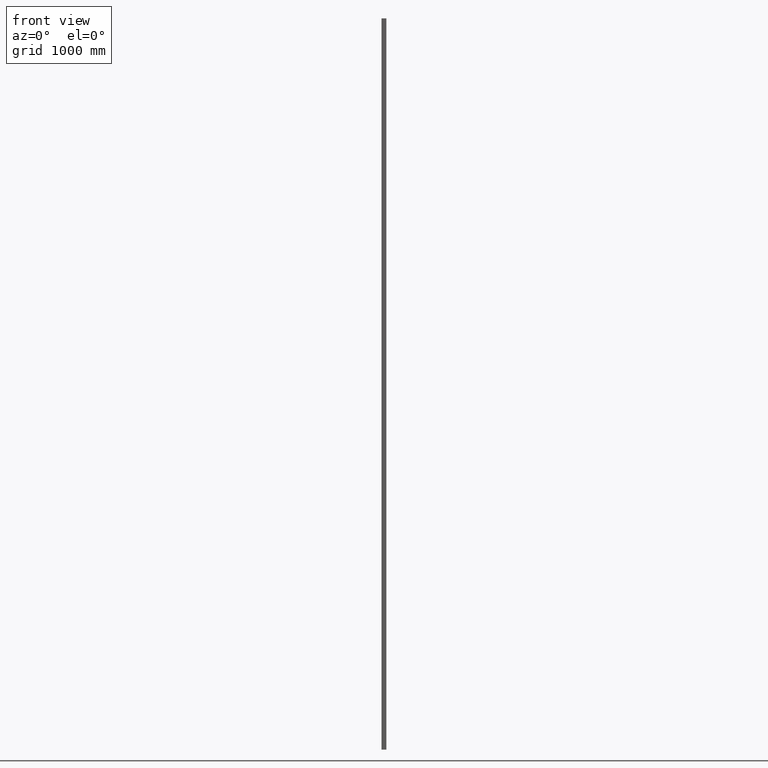
[diagram: clean part render]
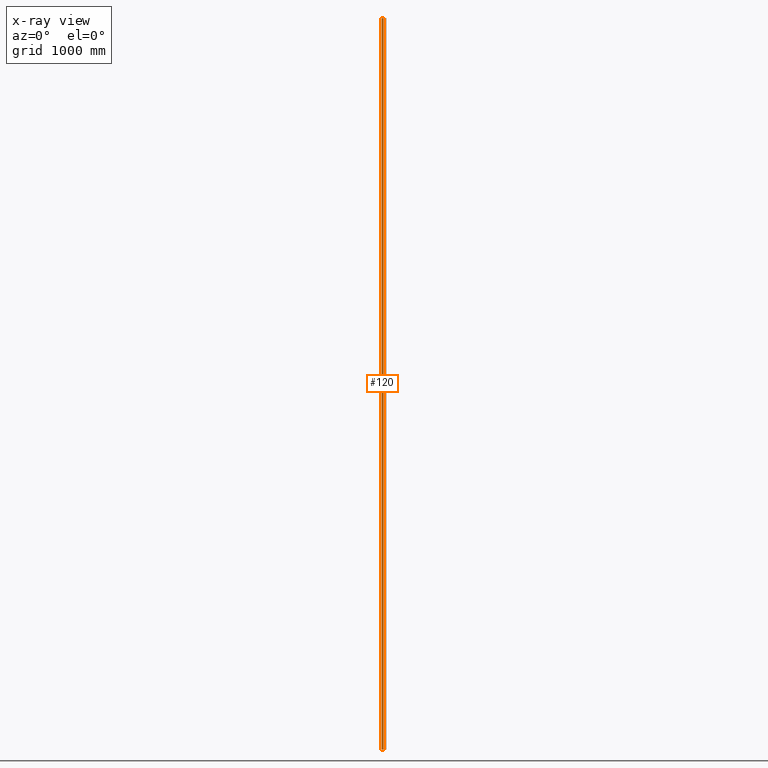
[diagram: x-ray — body ghosted, one internal face saturated and labeled with its STEP entity id]
A machine part, front view, then the same camera in x-ray: the body is ghosted and one INTERNAL B-rep face — a face not visible from any outside direction — is saturated and labeled: STEP entity #120.
In plain terms, the highlighted planar face has unit normal (0, 1, 0).
Its self-contained STEP definition (entity closure, byte-faithful):
#120 = ADVANCED_FACE ( 'NONE', ( #15628 ), #1101, .T. ) ;
#1101 = PLANE ( 'NONE',  #7587 ) ;
#1102 = CARTESIAN_POINT ( 'NONE',  ( -19.50000000000000000, 20.00000000000000000, -6000.000000000000000 ) ) ;
#1103 = DIRECTION ( 'NONE',  ( 0.0000000000000000000, 1.000000000000000000, 0.0000000000000000000 ) ) ;
#1104 = DIRECTION ( 'NONE',  ( 0.0000000000000000000, 0.0000000000000000000, 1.000000000000000000 ) ) ;
#1810 = EDGE_LOOP ( 'NONE', ( #8735, #8736, #8737, #8738 ) ) ;
#5328 = CARTESIAN_POINT ( 'NONE',  ( -4.000000000000000000, 20.00000000000000000, -6000.000000000000000 ) ) ;
#5330 = CARTESIAN_POINT ( 'NONE',  ( -4.000000000000000000, 20.00000000000000400, 0.0000000000000000000 ) ) ;
#5332 = CARTESIAN_POINT ( 'NONE',  ( -19.50000000000000000, 20.00000000000000000, -6000.000000000000000 ) ) ;
#5334 = CARTESIAN_POINT ( 'NONE',  ( -19.50000000000000000, 20.00000000000000400, 0.0000000000000000000 ) ) ;
#5720 = CARTESIAN_POINT ( 'NONE',  ( -19.50000000000000000, 20.00000000000000000, -6000.000000000000000 ) ) ;
#5721 = DIRECTION ( 'NONE',  ( -1.000000000000000000, -0.0000000000000000000, -0.0000000000000000000 ) ) ;
#5722 = CARTESIAN_POINT ( 'NONE',  ( -20.00000000000000000, 20.00000000000000400, 0.0000000000000000000 ) ) ;
#5723 = DIRECTION ( 'NONE',  ( -1.000000000000000000, -0.0000000000000000000, -0.0000000000000000000 ) ) ;
#6016 = LINE ( 'NONE', #5720, #6017 ) ;
#6017 = VECTOR ( 'NONE', #5721, 1000.000000000000000 ) ;
#6018 = LINE ( 'NONE', #5722, #6019 ) ;
#6019 = VECTOR ( 'NONE', #5723, 1000.000000000000000 ) ;
#7587 = AXIS2_PLACEMENT_3D ( 'NONE', #1102, #1103, #1104 ) ;
#8132 = EDGE_CURVE ( 'NONE', #15922, #15920, #18226, .T. ) ;
#8134 = EDGE_CURVE ( 'NONE', #15924, #15926, #18230, .T. ) ;
#8735 = ORIENTED_EDGE ( 'NONE', *, *, #16150, .T. ) ;
#8736 = ORIENTED_EDGE ( 'NONE', *, *, #8134, .T. ) ;
#8737 = ORIENTED_EDGE ( 'NONE', *, *, #16151, .F. ) ;
#8738 = ORIENTED_EDGE ( 'NONE', *, *, #8132, .T. ) ;
#15628 = FACE_OUTER_BOUND ( 'NONE', #1810, .T. ) ;
#15920 = VERTEX_POINT ( 'NONE', #5328 ) ;
#15922 = VERTEX_POINT ( 'NONE', #5330 ) ;
#15924 = VERTEX_POINT ( 'NONE', #5332 ) ;
#15926 = VERTEX_POINT ( 'NONE', #5334 ) ;
#16150 = EDGE_CURVE ( 'NONE', #15920, #15924, #6016, .T. ) ;
#16151 = EDGE_CURVE ( 'NONE', #15922, #15926, #6018, .T. ) ;
#17957 = CARTESIAN_POINT ( 'NONE',  ( -4.000000000000000000, 20.00000000000000000, -3000.000000000000000 ) ) ;
#17958 = DIRECTION ( 'NONE',  ( -0.0000000000000000000, -0.0000000000000000000, -1.000000000000000000 ) ) ;
#17961 = CARTESIAN_POINT ( 'NONE',  ( -19.50000000000000000, 20.00000000000000000, -3000.000000000000000 ) ) ;
#17962 = DIRECTION ( 'NONE',  ( 0.0000000000000000000, 0.0000000000000000000, 1.000000000000000000 ) ) ;
#18226 = LINE ( 'NONE', #17957, #18227 ) ;
#18227 = VECTOR ( 'NONE', #17958, 1000.000000000000000 ) ;
#18230 = LINE ( 'NONE', #17961, #18231 ) ;
#18231 = VECTOR ( 'NONE', #17962, 1000.000000000000000 ) ;